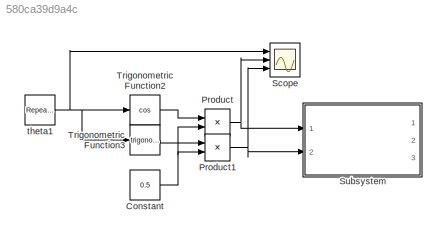
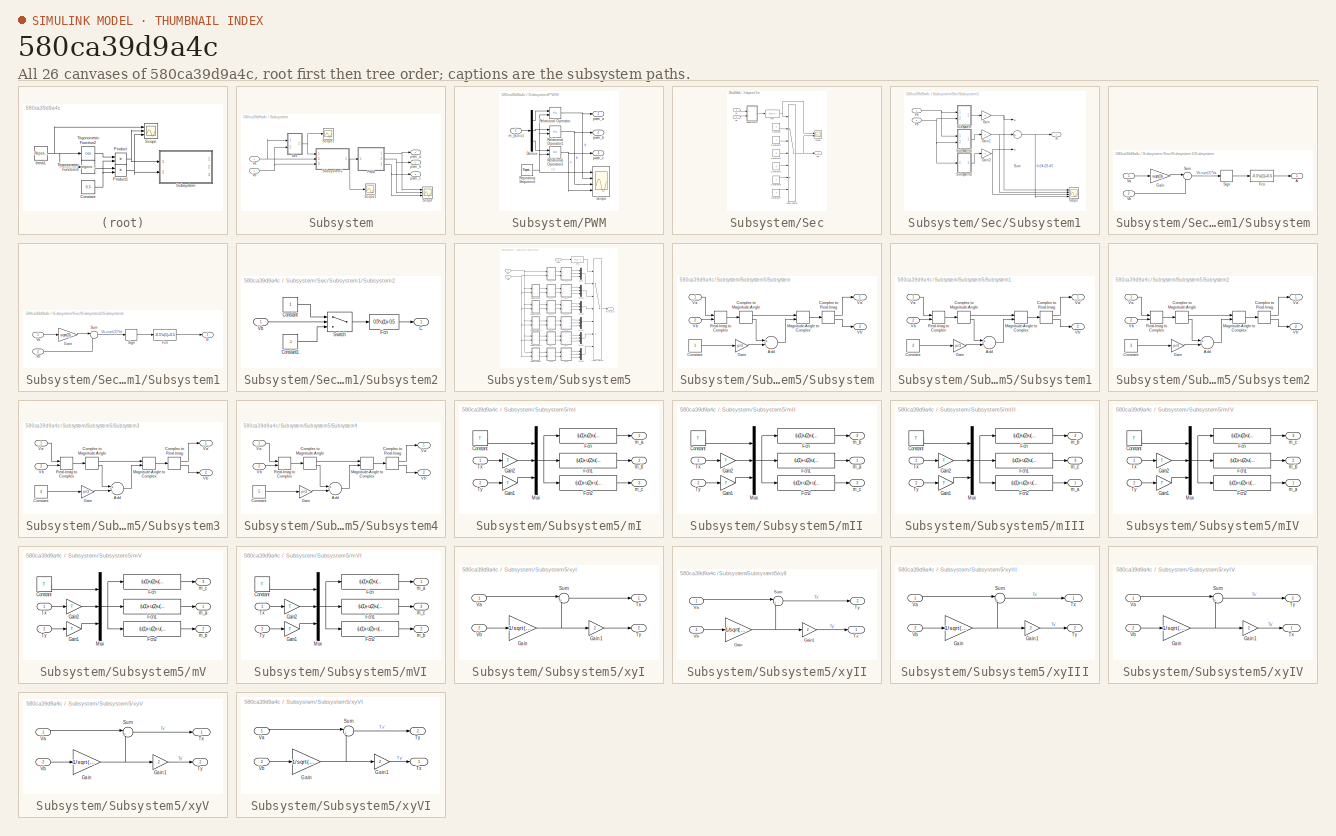
[diagram: thumbnail index - all 26 canvases of the model, root first then tree order]
MODEL slx_580ca39d9a4c
KIND model
CONFIG AbsTol = auto
CONFIG EnableMultiTasking = off
CONFIG FixedStep = auto
CONFIG MaxStep = 1e-5
CONFIG MinStep = auto
CONFIG RelTol = 1e-3
CONFIG SampleTimeConstraint = Unconstrained
CONFIG Solver = VariableStepAuto
CONFIG SolverName = VariableStepAuto
CONFIG StartTime = 0.0
CONFIG StopTime = 10.0
BLOCK [Constant] Constant
  Value = 0.5
BLOCK [Product] Product
  InputSameDT = off
  OutDataTypeStr = Inherit: Inherit via internal rule
  Ports = [2, 1]
  RndMeth = Floor
  SaturateOnIntegerOverflow = off
BLOCK [Product] Product1
  InputSameDT = off
  OutDataTypeStr = Inherit: Inherit via internal rule
  Ports = [2, 1]
  RndMeth = Floor
  SaturateOnIntegerOverflow = off
BLOCK [Scope] Scope
  Floating = off
  NumInputPorts = 3
  Ports = [3]
  ScopeSpecificationString = Simulink.scopes.TimeScopeBlockCfg('CurrentConfiguration', extmgr.ConfigurationSet(extmgr.Configuration('Core','General UI',true),extmgr.Configuration('Core','Source UI',true),extmgr.Configuration('Sources','WiredSimulink',true,'DataLoggingVariableName','ScopeData1'),extmgr.Configuration('Visuals','Time Domain',true,'SerializedDisplays',{struct('MinYLimReal','-0.7854','MaxYLimReal','7.06858','YLabe...<+2789ch>
BLOCK [SubSystem] Subsystem
  Ports = [2, 3]
  RequestExecContextInheritance = off
BLOCK [SubSystem] Subsystem/PWM
  Ports = [1, 3]
  RequestExecContextInheritance = off
BLOCK [Demux] Subsystem/PWM/Demux
  DisplayOption = bar
  Outputs = 3
  Ports = [1, 3]
BLOCK [RelationalOperator] Subsystem/PWM/Relational Operator
  InputSameDT = off
  Operator = <=
  OutDataTypeStr = boolean
  Ports = [2, 1]
  RndMeth = Simplest
BLOCK [RelationalOperator] Subsystem/PWM/Relational Operator1
  InputSameDT = off
  Operator = <=
  OutDataTypeStr = boolean
  Ports = [2, 1]
  RndMeth = Simplest
BLOCK [RelationalOperator] Subsystem/PWM/Relational Operator2
  InputSameDT = off
  Operator = <=
  OutDataTypeStr = boolean
  Ports = [2, 1]
  RndMeth = Simplest
BLOCK [Reference] Subsystem/PWM/Repeating Sequence  REF=simulink/Sources/Repeating
Sequence
  Ports = [0, 1]
  SourceBlock = simulink/Sources/Repeating\nSequence
  SourceProductBaseCode = SL
  SourceProductName = Simulink
  SourceType = Repeating table
BLOCK [Scope] Subsystem/PWM/Scope
  Floating = off
  NumInputPorts = 4
  Ports = [4]
  ScopeSpecificationString = Simulink.scopes.TimeScopeBlockCfg('CurrentConfiguration', extmgr.ConfigurationSet(extmgr.Configuration('Core','General UI',true),extmgr.Configuration('Core','Source UI',true),extmgr.Configuration('Sources','WiredSimulink',true,'DataLoggingVariableName','ScopeData1'),extmgr.Configuration('Visuals','Time Domain',true,'SerializedDisplays',{struct('MinYLimReal','0.5','MaxYLimReal','2','YLabelReal','',...<+2700ch>
BLOCK [Inport] Subsystem/PWM/m_(a,b,c) 
  IconDisplay = Port number
BLOCK [Outport] Subsystem/PWM/pwm_a
  IconDisplay = Port number
BLOCK [Outport] Subsystem/PWM/pwm_b
  IconDisplay = Port number
  Port = 2
BLOCK [Outport] Subsystem/PWM/pwm_c
  IconDisplay = Port number
  Port = 3
BLOCK [Scope] Subsystem/Scope
  Floating = off
  NumInputPorts = 3
  Ports = [3]
  ScopeSpecificationString = Simulink.scopes.TimeScopeBlockCfg('CurrentConfiguration', extmgr.ConfigurationSet(extmgr.Configuration('Core','General UI',true),extmgr.Configuration('Core','Source UI',true),extmgr.Configuration('Sources','WiredSimulink',true,'DataLoggingVariableName','ScopeData1'),extmgr.Configuration('Visuals','Time Domain',true,'SerializedDisplays',{struct('MinYLimReal','-0.125','MaxYLimReal','1.125','YLabelRe...<+2741ch>
BLOCK [Scope] Subsystem/Scope1
  Floating = off
  NumInputPorts = 1
  Ports = [1]
  ScopeSpecificationString = Simulink.scopes.TimeScopeBlockCfg('CurrentConfiguration', extmgr.ConfigurationSet(extmgr.Configuration('Core','General UI',true),extmgr.Configuration('Core','Source UI',true),extmgr.Configuration('Sources','WiredSimulink',true,'DataLoggingVariableName','ScopeData2'),extmgr.Configuration('Visuals','Time Domain',true,'SerializedDisplays',{struct('MinYLimReal','-0.000002','MaxYLimReal','0.000068','YL...<+1486ch>
BLOCK [Scope] Subsystem/Scope2
  Floating = off
  NumInputPorts = 1
  Ports = [1]
  ScopeSpecificationString = Simulink.scopes.TimeScopeBlockCfg('CurrentConfiguration', extmgr.ConfigurationSet(extmgr.Configuration('Core','General UI',true),extmgr.Configuration('Core','Source UI',true),extmgr.Configuration('Sources','WiredSimulink',true,'DataLoggingVariableName','ScopeData3'),extmgr.Configuration('Visuals','Time Domain',true,'SerializedDisplays',{struct('MinYLimReal','-0.01167','MaxYLimReal','6.40678','YLab...<+1439ch>
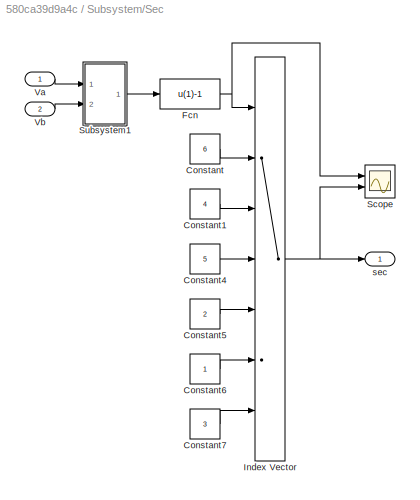
BLOCK [SubSystem] Subsystem/Sec
  Ports = [2, 1]
  RequestExecContextInheritance = off
BLOCK [Constant] Subsystem/Sec/Constant
  Value = 6
BLOCK [Constant] Subsystem/Sec/Constant1
  Value = 4
BLOCK [Constant] Subsystem/Sec/Constant4
  Value = 5
BLOCK [Constant] Subsystem/Sec/Constant5
  Value = 2
BLOCK [Constant] Subsystem/Sec/Constant6
BLOCK [Constant] Subsystem/Sec/Constant7
  Value = 3
BLOCK [Fcn] Subsystem/Sec/Fcn
  Expr = u(1)-1
BLOCK [MultiPortSwitch] Subsystem/Sec/Index Vector
  DataPortOrder = Zero-based contiguous
  InputSameDT = off
  Inputs = 6
  Ports = [7, 1]
  SaturateOnIntegerOverflow = off
  zeroidx = on
BLOCK [Scope] Subsystem/Sec/Scope
  Floating = off
  NumInputPorts = 2
  Ports = [2]
  ScopeSpecificationString = Simulink.scopes.TimeScopeBlockCfg('CurrentConfiguration', extmgr.ConfigurationSet(extmgr.Configuration('Core','General UI',true),extmgr.Configuration('Core','Source UI',true),extmgr.Configuration('Sources','WiredSimulink',true,'DataLoggingVariableName','ScopeData1'),extmgr.Configuration('Visuals','Time Domain',true,'SerializedDisplays',{struct('MinYLimReal','-0.625','MaxYLimReal','5.625','YLabelRe...<+2099ch>
BLOCK [SubSystem] Subsystem/Sec/Subsystem1
  Ports = [2, 1]
  RequestExecContextInheritance = off
BLOCK [Gain] Subsystem/Sec/Subsystem1/Gain
  OutDataTypeStr = Inherit: Inherit via internal rule
  ParamDataTypeStr = Inherit: Inherit via internal rule
  SaturateOnIntegerOverflow = off
BLOCK [Gain] Subsystem/Sec/Subsystem1/Gain1
  Gain = 2
  OutDataTypeStr = Inherit: Inherit via internal rule
  ParamDataTypeStr = Inherit: Inherit via internal rule
  SaturateOnIntegerOverflow = off
BLOCK [Gain] Subsystem/Sec/Subsystem1/Gain2
  Gain = 4
  OutDataTypeStr = Inherit: Inherit via internal rule
  ParamDataTypeStr = Inherit: Inherit via internal rule
  SaturateOnIntegerOverflow = off
BLOCK [Outport] Subsystem/Sec/Subsystem1/N 
  IconDisplay = Port number
BLOCK [Scope] Subsystem/Sec/Subsystem1/Scope
  Floating = off
  NumInputPorts = 4
  Ports = [4]
  ScopeSpecificationString = Simulink.scopes.TimeScopeBlockCfg('CurrentConfiguration', extmgr.ConfigurationSet(extmgr.Configuration('Core','General UI',true),extmgr.Configuration('Core','Source UI',true),extmgr.Configuration('Sources','WiredSimulink',true,'DataLoggingVariableName','ScopeData2'),extmgr.Configuration('Visuals','Time Domain',true,'SerializedDisplays',{struct('MinYLimReal','-0.125','MaxYLimReal','1.125','YLabelRe...<+3484ch>
BLOCK [SubSystem] Subsystem/Sec/Subsystem1/Subsystem
  Ports = [2, 1]
  RequestExecContextInheritance = off
BLOCK [Outport] Subsystem/Sec/Subsystem1/Subsystem/A
  IconDisplay = Port number
BLOCK [Fcn] Subsystem/Sec/Subsystem1/Subsystem/Fcn
  Expr = -0.5*u(1)+0.5
BLOCK [Gain] Subsystem/Sec/Subsystem1/Subsystem/Gain
  Gain = sqrt(3)
  OutDataTypeStr = Inherit: Inherit via internal rule
  ParamDataTypeStr = Inherit: Inherit via internal rule
  SaturateOnIntegerOverflow = off
BLOCK [Signum] Subsystem/Sec/Subsystem1/Subsystem/Sign
BLOCK [Sum] Subsystem/Sec/Subsystem1/Subsystem/Sum
  IconShape = round
  InputSameDT = off
  Inputs = |-+
  OutDataTypeStr = Inherit: Inherit via internal rule
  Ports = [2, 1]
  SaturateOnIntegerOverflow = off
BLOCK [Inport] Subsystem/Sec/Subsystem1/Subsystem/Va
  IconDisplay = Port number
BLOCK [Inport] Subsystem/Sec/Subsystem1/Subsystem/Vb 
  IconDisplay = Port number
  Port = 2
BLOCK [SubSystem] Subsystem/Sec/Subsystem1/Subsystem1
  Ports = [2, 1]
  RequestExecContextInheritance = off
BLOCK [Outport] Subsystem/Sec/Subsystem1/Subsystem1/B
  IconDisplay = Port number
BLOCK [Fcn] Subsystem/Sec/Subsystem1/Subsystem1/Fcn
  Expr = -0.5*u(1)+0.5
BLOCK [Gain] Subsystem/Sec/Subsystem1/Subsystem1/Gain
  Gain = sqrt(3)
  OutDataTypeStr = Inherit: Inherit via internal rule
  ParamDataTypeStr = Inherit: Inherit via internal rule
  SaturateOnIntegerOverflow = off
BLOCK [Signum] Subsystem/Sec/Subsystem1/Subsystem1/Sign
BLOCK [Sum] Subsystem/Sec/Subsystem1/Subsystem1/Sum
  IconShape = round
  InputSameDT = off
  Inputs = |++
  OutDataTypeStr = Inherit: Inherit via internal rule
  Ports = [2, 1]
  SaturateOnIntegerOverflow = off
BLOCK [Inport] Subsystem/Sec/Subsystem1/Subsystem1/Va
  IconDisplay = Port number
BLOCK [Inport] Subsystem/Sec/Subsystem1/Subsystem1/Vb 
  IconDisplay = Port number
  Port = 2
BLOCK [SubSystem] Subsystem/Sec/Subsystem1/Subsystem2
  Ports = [1, 1]
  RequestExecContextInheritance = off
BLOCK [Outport] Subsystem/Sec/Subsystem1/Subsystem2/C
  IconDisplay = Port number
BLOCK [Constant] Subsystem/Sec/Subsystem1/Subsystem2/Constant
BLOCK [Constant] Subsystem/Sec/Subsystem1/Subsystem2/Constant1
  Value = -1
BLOCK [Fcn] Subsystem/Sec/Subsystem1/Subsystem2/Fcn
  Expr = 0.5*u(1)+0.5
BLOCK [Switch] Subsystem/Sec/Subsystem1/Subsystem2/Switch
  InputSameDT = off
  SaturateOnIntegerOverflow = off
BLOCK [Inport] Subsystem/Sec/Subsystem1/Subsystem2/Vb 
  IconDisplay = Port number
BLOCK [Sum] Subsystem/Sec/Subsystem1/Sum
  InputSameDT = off
  Inputs = +++
  OutDataTypeStr = Inherit: Inherit via internal rule
  Ports = [3, 1]
  SaturateOnIntegerOverflow = off
BLOCK [Inport] Subsystem/Sec/Subsystem1/Va
  IconDisplay = Port number
BLOCK [Inport] Subsystem/Sec/Subsystem1/Vb 
  IconDisplay = Port number
  Port = 2
BLOCK [Inport] Subsystem/Sec/Va
  IconDisplay = Port number
BLOCK [Inport] Subsystem/Sec/Vb
  IconDisplay = Port number
  Port = 2
BLOCK [Outport] Subsystem/Sec/sec
  IconDisplay = Port number
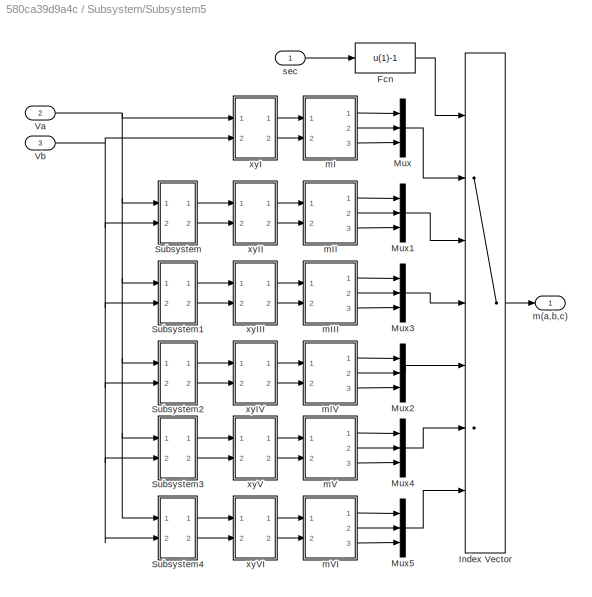
BLOCK [SubSystem] Subsystem/Subsystem5
  Ports = [3, 1]
  RequestExecContextInheritance = off
BLOCK [Fcn] Subsystem/Subsystem5/Fcn
  Expr = u(1)-1
BLOCK [MultiPortSwitch] Subsystem/Subsystem5/Index Vector
  DataPortOrder = Zero-based contiguous
  InputSameDT = off
  Inputs = 6
  Ports = [7, 1]
  SaturateOnIntegerOverflow = off
  zeroidx = on
BLOCK [Mux] Subsystem/Subsystem5/Mux
  DisplayOption = bar
  Inputs = 3
  Ports = [3, 1]
BLOCK [Mux] Subsystem/Subsystem5/Mux1
  DisplayOption = bar
  Inputs = 3
  Ports = [3, 1]
BLOCK [Mux] Subsystem/Subsystem5/Mux2
  DisplayOption = bar
  Inputs = 3
  Ports = [3, 1]
BLOCK [Mux] Subsystem/Subsystem5/Mux3
  DisplayOption = bar
  Inputs = 3
  Ports = [3, 1]
BLOCK [Mux] Subsystem/Subsystem5/Mux4
  DisplayOption = bar
  Inputs = 3
  Ports = [3, 1]
BLOCK [Mux] Subsystem/Subsystem5/Mux5
  DisplayOption = bar
  Inputs = 3
  Ports = [3, 1]
BLOCK [SubSystem] Subsystem/Subsystem5/Subsystem
  Ports = [2, 2]
  RequestExecContextInheritance = off
BLOCK [Sum] Subsystem/Subsystem5/Subsystem/Add
  InputSameDT = off
  Inputs = +-
  OutDataTypeStr = Inherit: Inherit via internal rule
  Ports = [2, 1]
  SaturateOnIntegerOverflow = off
BLOCK [ComplexToMagnitudeAngle] Subsystem/Subsystem5/Subsystem/Complex to Magnitude-Angle
  Ports = [1, 2]
BLOCK [ComplexToRealImag] Subsystem/Subsystem5/Subsystem/Complex to Real-Imag
  Ports = [1, 2]
BLOCK [Constant] Subsystem/Subsystem5/Subsystem/Constant
BLOCK [Gain] Subsystem/Subsystem5/Subsystem/Gain
  Gain = pi/3
  OutDataTypeStr = Inherit: Inherit via internal rule
  ParamDataTypeStr = Inherit: Inherit via internal rule
  SaturateOnIntegerOverflow = off
BLOCK [MagnitudeAngleToComplex] Subsystem/Subsystem5/Subsystem/Magnitude-Angle to Complex
  Ports = [2, 1]
BLOCK [RealImagToComplex] Subsystem/Subsystem5/Subsystem/Real-Imag to Complex
  Ports = [2, 1]
BLOCK [Inport] Subsystem/Subsystem5/Subsystem/Va
  IconDisplay = Port number
BLOCK [Outport] Subsystem/Subsystem5/Subsystem/Va'
  IconDisplay = Port number
BLOCK [Inport] Subsystem/Subsystem5/Subsystem/Vb
  IconDisplay = Port number
  Port = 2
BLOCK [Outport] Subsystem/Subsystem5/Subsystem/Vb'
  IconDisplay = Port number
  Port = 2
BLOCK [SubSystem] Subsystem/Subsystem5/Subsystem1
  Ports = [2, 2]
  RequestExecContextInheritance = off
BLOCK [Sum] Subsystem/Subsystem5/Subsystem1/Add
  InputSameDT = off
  Inputs = +-
  OutDataTypeStr = Inherit: Inherit via internal rule
  Ports = [2, 1]
  SaturateOnIntegerOverflow = off
BLOCK [ComplexToMagnitudeAngle] Subsystem/Subsystem5/Subsystem1/Complex to Magnitude-Angle
  Ports = [1, 2]
BLOCK [ComplexToRealImag] Subsystem/Subsystem5/Subsystem1/Complex to Real-Imag
  Ports = [1, 2]
BLOCK [Constant] Subsystem/Subsystem5/Subsystem1/Constant
  Value = 2
BLOCK [Gain] Subsystem/Subsystem5/Subsystem1/Gain
  Gain = pi/3
  OutDataTypeStr = Inherit: Inherit via internal rule
  ParamDataTypeStr = Inherit: Inherit via internal rule
  SaturateOnIntegerOverflow = off
BLOCK [MagnitudeAngleToComplex] Subsystem/Subsystem5/Subsystem1/Magnitude-Angle to Complex
  Ports = [2, 1]
BLOCK [RealImagToComplex] Subsystem/Subsystem5/Subsystem1/Real-Imag to Complex
  Ports = [2, 1]
BLOCK [Inport] Subsystem/Subsystem5/Subsystem1/Va
  IconDisplay = Port number
BLOCK [Outport] Subsystem/Subsystem5/Subsystem1/Va'
  IconDisplay = Port number
BLOCK [Inport] Subsystem/Subsystem5/Subsystem1/Vb
  IconDisplay = Port number
  Port = 2
BLOCK [Outport] Subsystem/Subsystem5/Subsystem1/Vb'
  IconDisplay = Port number
  Port = 2
BLOCK [SubSystem] Subsystem/Subsystem5/Subsystem2
  Ports = [2, 2]
  RequestExecContextInheritance = off
BLOCK [Sum] Subsystem/Subsystem5/Subsystem2/Add
  InputSameDT = off
  Inputs = +-
  OutDataTypeStr = Inherit: Inherit via internal rule
  Ports = [2, 1]
  SaturateOnIntegerOverflow = off
BLOCK [ComplexToMagnitudeAngle] Subsystem/Subsystem5/Subsystem2/Complex to Magnitude-Angle
  Ports = [1, 2]
BLOCK [ComplexToRealImag] Subsystem/Subsystem5/Subsystem2/Complex to Real-Imag
  Ports = [1, 2]
BLOCK [Constant] Subsystem/Subsystem5/Subsystem2/Constant
  Value = 3
BLOCK [Gain] Subsystem/Subsystem5/Subsystem2/Gain
  Gain = pi/3
  OutDataTypeStr = Inherit: Inherit via internal rule
  ParamDataTypeStr = Inherit: Inherit via internal rule
  SaturateOnIntegerOverflow = off
BLOCK [MagnitudeAngleToComplex] Subsystem/Subsystem5/Subsystem2/Magnitude-Angle to Complex
  Ports = [2, 1]
BLOCK [RealImagToComplex] Subsystem/Subsystem5/Subsystem2/Real-Imag to Complex
  Ports = [2, 1]
BLOCK [Inport] Subsystem/Subsystem5/Subsystem2/Va
  IconDisplay = Port number
BLOCK [Outport] Subsystem/Subsystem5/Subsystem2/Va'
  IconDisplay = Port number
BLOCK [Inport] Subsystem/Subsystem5/Subsystem2/Vb
  IconDisplay = Port number
  Port = 2
BLOCK [Outport] Subsystem/Subsystem5/Subsystem2/Vb'
  IconDisplay = Port number
  Port = 2
BLOCK [SubSystem] Subsystem/Subsystem5/Subsystem3
  Ports = [2, 2]
  RequestExecContextInheritance = off
BLOCK [Sum] Subsystem/Subsystem5/Subsystem3/Add
  InputSameDT = off
  Inputs = +-
  OutDataTypeStr = Inherit: Inherit via internal rule
  Ports = [2, 1]
  SaturateOnIntegerOverflow = off
BLOCK [ComplexToMagnitudeAngle] Subsystem/Subsystem5/Subsystem3/Complex to Magnitude-Angle
  Ports = [1, 2]
BLOCK [ComplexToRealImag] Subsystem/Subsystem5/Subsystem3/Complex to Real-Imag
  Ports = [1, 2]
BLOCK [Constant] Subsystem/Subsystem5/Subsystem3/Constant
  Value = 4
BLOCK [Gain] Subsystem/Subsystem5/Subsystem3/Gain
  Gain = pi/3
  OutDataTypeStr = Inherit: Inherit via internal rule
  ParamDataTypeStr = Inherit: Inherit via internal rule
  SaturateOnIntegerOverflow = off
BLOCK [MagnitudeAngleToComplex] Subsystem/Subsystem5/Subsystem3/Magnitude-Angle to Complex
  Ports = [2, 1]
BLOCK [RealImagToComplex] Subsystem/Subsystem5/Subsystem3/Real-Imag to Complex
  Ports = [2, 1]
BLOCK [Inport] Subsystem/Subsystem5/Subsystem3/Va
  IconDisplay = Port number
BLOCK [Outport] Subsystem/Subsystem5/Subsystem3/Va'
  IconDisplay = Port number
BLOCK [Inport] Subsystem/Subsystem5/Subsystem3/Vb
  IconDisplay = Port number
  Port = 2
BLOCK [Outport] Subsystem/Subsystem5/Subsystem3/Vb'
  IconDisplay = Port number
  Port = 2
BLOCK [SubSystem] Subsystem/Subsystem5/Subsystem4
  Ports = [2, 2]
  RequestExecContextInheritance = off
BLOCK [Sum] Subsystem/Subsystem5/Subsystem4/Add
  InputSameDT = off
  Inputs = +-
  OutDataTypeStr = Inherit: Inherit via internal rule
  Ports = [2, 1]
  SaturateOnIntegerOverflow = off
BLOCK [ComplexToMagnitudeAngle] Subsystem/Subsystem5/Subsystem4/Complex to Magnitude-Angle
  Ports = [1, 2]
BLOCK [ComplexToRealImag] Subsystem/Subsystem5/Subsystem4/Complex to Real-Imag
  Ports = [1, 2]
BLOCK [Constant] Subsystem/Subsystem5/Subsystem4/Constant
  Value = 5
BLOCK [Gain] Subsystem/Subsystem5/Subsystem4/Gain
  Gain = pi/3
  OutDataTypeStr = Inherit: Inherit via internal rule
  ParamDataTypeStr = Inherit: Inherit via internal rule
  SaturateOnIntegerOverflow = off
BLOCK [MagnitudeAngleToComplex] Subsystem/Subsystem5/Subsystem4/Magnitude-Angle to Complex
  Ports = [2, 1]
BLOCK [RealImagToComplex] Subsystem/Subsystem5/Subsystem4/Real-Imag to Complex
  Ports = [2, 1]
BLOCK [Inport] Subsystem/Subsystem5/Subsystem4/Va
  IconDisplay = Port number
BLOCK [Outport] Subsystem/Subsystem5/Subsystem4/Va'
  IconDisplay = Port number
BLOCK [Inport] Subsystem/Subsystem5/Subsystem4/Vb
  IconDisplay = Port number
  Port = 2
BLOCK [Outport] Subsystem/Subsystem5/Subsystem4/Vb'
  IconDisplay = Port number
  Port = 2
BLOCK [Inport] Subsystem/Subsystem5/Va
  IconDisplay = Port number
  Port = 2
BLOCK [Inport] Subsystem/Subsystem5/Vb
  IconDisplay = Port number
  Port = 3
BLOCK [Outport] Subsystem/Subsystem5/m(a,b,c)
  IconDisplay = Port number
BLOCK [SubSystem] Subsystem/Subsystem5/mI
  Ports = [2, 3]
  RequestExecContextInheritance = off
BLOCK [Constant] Subsystem/Subsystem5/mI/Constant
  Value = T
BLOCK [Fcn] Subsystem/Subsystem5/mI/Fcn
  Expr = (u(1)-u(2)-u(3))/4
BLOCK [Fcn] Subsystem/Subsystem5/mI/Fcn1
  Expr = (u(1)+u(2)-u(3))/4
BLOCK [Fcn] Subsystem/Subsystem5/mI/Fcn2
  Expr = (u(1)+u(2)+u(3))/4
BLOCK [Gain] Subsystem/Subsystem5/mI/Gain1
  Gain = T
  OutDataTypeStr = Inherit: Inherit via internal rule
  ParamDataTypeStr = Inherit: Inherit via internal rule
  SaturateOnIntegerOverflow = off
BLOCK [Gain] Subsystem/Subsystem5/mI/Gain2
  Gain = T
  OutDataTypeStr = Inherit: Inherit via internal rule
  ParamDataTypeStr = Inherit: Inherit via internal rule
  SaturateOnIntegerOverflow = off
BLOCK [Mux] Subsystem/Subsystem5/mI/Mux
  DisplayOption = bar
  Inputs = 3
  Ports = [3, 1]
BLOCK [Inport] Subsystem/Subsystem5/mI/Tx 
  IconDisplay = Port number
BLOCK [Inport] Subsystem/Subsystem5/mI/Ty 
  IconDisplay = Port number
  Port = 2
BLOCK [Outport] Subsystem/Subsystem5/mI/m_a
  IconDisplay = Port number
BLOCK [Outport] Subsystem/Subsystem5/mI/m_b
  IconDisplay = Port number
  Port = 2
BLOCK [Outport] Subsystem/Subsystem5/mI/m_c
  IconDisplay = Port number
  Port = 3
BLOCK [SubSystem] Subsystem/Subsystem5/mII
  Ports = [2, 3]
  RequestExecContextInheritance = off
BLOCK [Constant] Subsystem/Subsystem5/mII/Constant
  Value = T
BLOCK [Fcn] Subsystem/Subsystem5/mII/Fcn
  Expr = (u(1)-u(2)-u(3))/4
BLOCK [Fcn] Subsystem/Subsystem5/mII/Fcn1
  Expr = (u(1)+u(2)-u(3))/4
BLOCK [Fcn] Subsystem/Subsystem5/mII/Fcn2
  Expr = (u(1)+u(2)+u(3))/4
BLOCK [Gain] Subsystem/Subsystem5/mII/Gain1
  Gain = T
  OutDataTypeStr = Inherit: Inherit via internal rule
  ParamDataTypeStr = Inherit: Inherit via internal rule
  SaturateOnIntegerOverflow = off
BLOCK [Gain] Subsystem/Subsystem5/mII/Gain2
  Gain = T
  OutDataTypeStr = Inherit: Inherit via internal rule
  ParamDataTypeStr = Inherit: Inherit via internal rule
  SaturateOnIntegerOverflow = off
BLOCK [Mux] Subsystem/Subsystem5/mII/Mux
  DisplayOption = bar
  Inputs = 3
  Ports = [3, 1]
BLOCK [Inport] Subsystem/Subsystem5/mII/Tx 
  IconDisplay = Port number
BLOCK [Inport] Subsystem/Subsystem5/mII/Ty 
  IconDisplay = Port number
  Port = 2
BLOCK [Outport] Subsystem/Subsystem5/mII/m_a
  IconDisplay = Port number
BLOCK [Outport] Subsystem/Subsystem5/mII/m_b
  IconDisplay = Port number
  Port = 2
BLOCK [Outport] Subsystem/Subsystem5/mII/m_c
  IconDisplay = Port number
  Port = 3
BLOCK [SubSystem] Subsystem/Subsystem5/mIII
  Ports = [2, 3]
  RequestExecContextInheritance = off
BLOCK [Constant] Subsystem/Subsystem5/mIII/Constant
  Value = T
BLOCK [Fcn] Subsystem/Subsystem5/mIII/Fcn
  Expr = (u(1)-u(2)-u(3))/4
BLOCK [Fcn] Subsystem/Subsystem5/mIII/Fcn1
  Expr = (u(1)+u(2)-u(3))/4
BLOCK [Fcn] Subsystem/Subsystem5/mIII/Fcn2
  Expr = (u(1)+u(2)+u(3))/4
BLOCK [Gain] Subsystem/Subsystem5/mIII/Gain1
  Gain = T
  OutDataTypeStr = Inherit: Inherit via internal rule
  ParamDataTypeStr = Inherit: Inherit via internal rule
  SaturateOnIntegerOverflow = off
BLOCK [Gain] Subsystem/Subsystem5/mIII/Gain2
  Gain = T
  OutDataTypeStr = Inherit: Inherit via internal rule
  ParamDataTypeStr = Inherit: Inherit via internal rule
  SaturateOnIntegerOverflow = off
BLOCK [Mux] Subsystem/Subsystem5/mIII/Mux
  DisplayOption = bar
  Inputs = 3
  Ports = [3, 1]
BLOCK [Inport] Subsystem/Subsystem5/mIII/Tx 
  IconDisplay = Port number
BLOCK [Inport] Subsystem/Subsystem5/mIII/Ty 
  IconDisplay = Port number
  Port = 2
BLOCK [Outport] Subsystem/Subsystem5/mIII/m_a
  IconDisplay = Port number
BLOCK [Outport] Subsystem/Subsystem5/mIII/m_b
  IconDisplay = Port number
  Port = 2
BLOCK [Outport] Subsystem/Subsystem5/mIII/m_c
  IconDisplay = Port number
  Port = 3
BLOCK [SubSystem] Subsystem/Subsystem5/mIV
  Ports = [2, 3]
  RequestExecContextInheritance = off
BLOCK [Constant] Subsystem/Subsystem5/mIV/Constant
  Value = T
BLOCK [Fcn] Subsystem/Subsystem5/mIV/Fcn
  Expr = (u(1)-u(2)-u(3))/4
BLOCK [Fcn] Subsystem/Subsystem5/mIV/Fcn1
  Expr = (u(1)+u(2)-u(3))/4
BLOCK [Fcn] Subsystem/Subsystem5/mIV/Fcn2
  Expr = (u(1)+u(2)+u(3))/4
BLOCK [Gain] Subsystem/Subsystem5/mIV/Gain1
  Gain = T
  OutDataTypeStr = Inherit: Inherit via internal rule
  ParamDataTypeStr = Inherit: Inherit via internal rule
  SaturateOnIntegerOverflow = off
BLOCK [Gain] Subsystem/Subsystem5/mIV/Gain2
  Gain = T
  OutDataTypeStr = Inherit: Inherit via internal rule
  ParamDataTypeStr = Inherit: Inherit via internal rule
  SaturateOnIntegerOverflow = off
BLOCK [Mux] Subsystem/Subsystem5/mIV/Mux
  DisplayOption = bar
  Inputs = 3
  Ports = [3, 1]
BLOCK [Inport] Subsystem/Subsystem5/mIV/Tx 
  IconDisplay = Port number
BLOCK [Inport] Subsystem/Subsystem5/mIV/Ty 
  IconDisplay = Port number
  Port = 2
BLOCK [Outport] Subsystem/Subsystem5/mIV/m_a
  IconDisplay = Port number
BLOCK [Outport] Subsystem/Subsystem5/mIV/m_b
  IconDisplay = Port number
  Port = 2
BLOCK [Outport] Subsystem/Subsystem5/mIV/m_c
  IconDisplay = Port number
  Port = 3
BLOCK [SubSystem] Subsystem/Subsystem5/mV
  Ports = [2, 3]
  RequestExecContextInheritance = off
BLOCK [Constant] Subsystem/Subsystem5/mV/Constant
  Value = T
BLOCK [Fcn] Subsystem/Subsystem5/mV/Fcn
  Expr = (u(1)-u(2)-u(3))/4
BLOCK [Fcn] Subsystem/Subsystem5/mV/Fcn1
  Expr = (u(1)+u(2)-u(3))/4
BLOCK [Fcn] Subsystem/Subsystem5/mV/Fcn2
  Expr = (u(1)+u(2)+u(3))/4
BLOCK [Gain] Subsystem/Subsystem5/mV/Gain1
  Gain = T
  OutDataTypeStr = Inherit: Inherit via internal rule
  ParamDataTypeStr = Inherit: Inherit via internal rule
  SaturateOnIntegerOverflow = off
BLOCK [Gain] Subsystem/Subsystem5/mV/Gain2
  Gain = T
  OutDataTypeStr = Inherit: Inherit via internal rule
  ParamDataTypeStr = Inherit: Inherit via internal rule
  SaturateOnIntegerOverflow = off
BLOCK [Mux] Subsystem/Subsystem5/mV/Mux
  DisplayOption = bar
  Inputs = 3
  Ports = [3, 1]
BLOCK [Inport] Subsystem/Subsystem5/mV/Tx 
  IconDisplay = Port number
BLOCK [Inport] Subsystem/Subsystem5/mV/Ty 
  IconDisplay = Port number
  Port = 2
BLOCK [Outport] Subsystem/Subsystem5/mV/m_a
  IconDisplay = Port number
BLOCK [Outport] Subsystem/Subsystem5/mV/m_b
  IconDisplay = Port number
  Port = 2
BLOCK [Outport] Subsystem/Subsystem5/mV/m_c
  IconDisplay = Port number
  Port = 3
BLOCK [SubSystem] Subsystem/Subsystem5/mVI
  Ports = [2, 3]
  RequestExecContextInheritance = off
BLOCK [Constant] Subsystem/Subsystem5/mVI/Constant
  Value = T
BLOCK [Fcn] Subsystem/Subsystem5/mVI/Fcn
  Expr = (u(1)-u(2)-u(3))/4
BLOCK [Fcn] Subsystem/Subsystem5/mVI/Fcn1
  Expr = (u(1)+u(2)-u(3))/4
BLOCK [Fcn] Subsystem/Subsystem5/mVI/Fcn2
  Expr = (u(1)+u(2)+u(3))/4
BLOCK [Gain] Subsystem/Subsystem5/mVI/Gain1
  Gain = T
  OutDataTypeStr = Inherit: Inherit via internal rule
  ParamDataTypeStr = Inherit: Inherit via internal rule
  SaturateOnIntegerOverflow = off
BLOCK [Gain] Subsystem/Subsystem5/mVI/Gain2
  Gain = T
  OutDataTypeStr = Inherit: Inherit via internal rule
  ParamDataTypeStr = Inherit: Inherit via internal rule
  SaturateOnIntegerOverflow = off
BLOCK [Mux] Subsystem/Subsystem5/mVI/Mux
  DisplayOption = bar
  Inputs = 3
  Ports = [3, 1]
BLOCK [Inport] Subsystem/Subsystem5/mVI/Tx 
  IconDisplay = Port number
BLOCK [Inport] Subsystem/Subsystem5/mVI/Ty 
  IconDisplay = Port number
  Port = 2
BLOCK [Outport] Subsystem/Subsystem5/mVI/m_a
  IconDisplay = Port number
BLOCK [Outport] Subsystem/Subsystem5/mVI/m_b
  IconDisplay = Port number
  Port = 2
BLOCK [Outport] Subsystem/Subsystem5/mVI/m_c
  IconDisplay = Port number
  Port = 3
BLOCK [Inport] Subsystem/Subsystem5/sec
  IconDisplay = Port number
BLOCK [SubSystem] Subsystem/Subsystem5/xyI
  Ports = [2, 2]
  RequestExecContextInheritance = off
BLOCK [Gain] Subsystem/Subsystem5/xyI/Gain
  Gain = 1/sqrt(3)
  OutDataTypeStr = Inherit: Inherit via internal rule
  ParamDataTypeStr = Inherit: Inherit via internal rule
  SaturateOnIntegerOverflow = off
BLOCK [Gain] Subsystem/Subsystem5/xyI/Gain1
  Gain = 2
  OutDataTypeStr = Inherit: Inherit via internal rule
  ParamDataTypeStr = Inherit: Inherit via internal rule
  SaturateOnIntegerOverflow = off
BLOCK [Sum] Subsystem/Subsystem5/xyI/Sum
  IconShape = round
  InputSameDT = off
  Inputs = |+-
  OutDataTypeStr = Inherit: Inherit via internal rule
  Ports = [2, 1]
  SaturateOnIntegerOverflow = off
BLOCK [Outport] Subsystem/Subsystem5/xyI/Tx
  IconDisplay = Port number
BLOCK [Outport] Subsystem/Subsystem5/xyI/Ty
  IconDisplay = Port number
  Port = 2
BLOCK [Inport] Subsystem/Subsystem5/xyI/Va
  IconDisplay = Port number
BLOCK [Inport] Subsystem/Subsystem5/xyI/Vb 
  IconDisplay = Port number
  Port = 2
BLOCK [SubSystem] Subsystem/Subsystem5/xyII
  Ports = [2, 2]
  RequestExecContextInheritance = off
BLOCK [Gain] Subsystem/Subsystem5/xyII/Gain
  Gain = 1/sqrt(3)
  OutDataTypeStr = Inherit: Inherit via internal rule
  ParamDataTypeStr = Inherit: Inherit via internal rule
  SaturateOnIntegerOverflow = off
BLOCK [Gain] Subsystem/Subsystem5/xyII/Gain1
  Gain = 2
  OutDataTypeStr = Inherit: Inherit via internal rule
  ParamDataTypeStr = Inherit: Inherit via internal rule
  SaturateOnIntegerOverflow = off
BLOCK [Sum] Subsystem/Subsystem5/xyII/Sum
  IconShape = round
  InputSameDT = off
  Inputs = |+-
  OutDataTypeStr = Inherit: Inherit via internal rule
  Ports = [2, 1]
  SaturateOnIntegerOverflow = off
BLOCK [Outport] Subsystem/Subsystem5/xyII/Tx
  IconDisplay = Port number
BLOCK [Outport] Subsystem/Subsystem5/xyII/Ty
  IconDisplay = Port number
  Port = 2
BLOCK [Inport] Subsystem/Subsystem5/xyII/Va
  IconDisplay = Port number
BLOCK [Inport] Subsystem/Subsystem5/xyII/Vb 
  IconDisplay = Port number
  Port = 2
BLOCK [SubSystem] Subsystem/Subsystem5/xyIII
  Ports = [2, 2]
  RequestExecContextInheritance = off
BLOCK [Gain] Subsystem/Subsystem5/xyIII/Gain
  Gain = 1/sqrt(3)
  OutDataTypeStr = Inherit: Inherit via internal rule
  ParamDataTypeStr = Inherit: Inherit via internal rule
  SaturateOnIntegerOverflow = off
BLOCK [Gain] Subsystem/Subsystem5/xyIII/Gain1
  Gain = 2
  OutDataTypeStr = Inherit: Inherit via internal rule
  ParamDataTypeStr = Inherit: Inherit via internal rule
  SaturateOnIntegerOverflow = off
BLOCK [Sum] Subsystem/Subsystem5/xyIII/Sum
  IconShape = round
  InputSameDT = off
  Inputs = |+-
  OutDataTypeStr = Inherit: Inherit via internal rule
  Ports = [2, 1]
  SaturateOnIntegerOverflow = off
BLOCK [Outport] Subsystem/Subsystem5/xyIII/Tx
  IconDisplay = Port number
BLOCK [Outport] Subsystem/Subsystem5/xyIII/Ty
  IconDisplay = Port number
  Port = 2
BLOCK [Inport] Subsystem/Subsystem5/xyIII/Va
  IconDisplay = Port number
BLOCK [Inport] Subsystem/Subsystem5/xyIII/Vb 
  IconDisplay = Port number
  Port = 2
BLOCK [SubSystem] Subsystem/Subsystem5/xyIV
  Ports = [2, 2]
  RequestExecContextInheritance = off
BLOCK [Gain] Subsystem/Subsystem5/xyIV/Gain
  Gain = 1/sqrt(3)
  OutDataTypeStr = Inherit: Inherit via internal rule
  ParamDataTypeStr = Inherit: Inherit via internal rule
  SaturateOnIntegerOverflow = off
BLOCK [Gain] Subsystem/Subsystem5/xyIV/Gain1
  Gain = 2
  OutDataTypeStr = Inherit: Inherit via internal rule
  ParamDataTypeStr = Inherit: Inherit via internal rule
  SaturateOnIntegerOverflow = off
BLOCK [Sum] Subsystem/Subsystem5/xyIV/Sum
  IconShape = round
  InputSameDT = off
  Inputs = |+-
  OutDataTypeStr = Inherit: Inherit via internal rule
  Ports = [2, 1]
  SaturateOnIntegerOverflow = off
BLOCK [Outport] Subsystem/Subsystem5/xyIV/Tx
  IconDisplay = Port number
BLOCK [Outport] Subsystem/Subsystem5/xyIV/Ty
  IconDisplay = Port number
  Port = 2
BLOCK [Inport] Subsystem/Subsystem5/xyIV/Va
  IconDisplay = Port number
BLOCK [Inport] Subsystem/Subsystem5/xyIV/Vb 
  IconDisplay = Port number
  Port = 2
BLOCK [SubSystem] Subsystem/Subsystem5/xyV
  Ports = [2, 2]
  RequestExecContextInheritance = off
BLOCK [Gain] Subsystem/Subsystem5/xyV/Gain
  Gain = 1/sqrt(3)
  OutDataTypeStr = Inherit: Inherit via internal rule
  ParamDataTypeStr = Inherit: Inherit via internal rule
  SaturateOnIntegerOverflow = off
BLOCK [Gain] Subsystem/Subsystem5/xyV/Gain1
  Gain = 2
  OutDataTypeStr = Inherit: Inherit via internal rule
  ParamDataTypeStr = Inherit: Inherit via internal rule
  SaturateOnIntegerOverflow = off
BLOCK [Sum] Subsystem/Subsystem5/xyV/Sum
  IconShape = round
  InputSameDT = off
  Inputs = |+-
  OutDataTypeStr = Inherit: Inherit via internal rule
  Ports = [2, 1]
  SaturateOnIntegerOverflow = off
BLOCK [Outport] Subsystem/Subsystem5/xyV/Tx
  IconDisplay = Port number
BLOCK [Outport] Subsystem/Subsystem5/xyV/Ty
  IconDisplay = Port number
  Port = 2
BLOCK [Inport] Subsystem/Subsystem5/xyV/Va
  IconDisplay = Port number
BLOCK [Inport] Subsystem/Subsystem5/xyV/Vb 
  IconDisplay = Port number
  Port = 2
BLOCK [SubSystem] Subsystem/Subsystem5/xyVI
  Ports = [2, 2]
  RequestExecContextInheritance = off
BLOCK [Gain] Subsystem/Subsystem5/xyVI/Gain
  Gain = 1/sqrt(3)
  OutDataTypeStr = Inherit: Inherit via internal rule
  ParamDataTypeStr = Inherit: Inherit via internal rule
  SaturateOnIntegerOverflow = off
BLOCK [Gain] Subsystem/Subsystem5/xyVI/Gain1
  Gain = 2
  OutDataTypeStr = Inherit: Inherit via internal rule
  ParamDataTypeStr = Inherit: Inherit via internal rule
  SaturateOnIntegerOverflow = off
BLOCK [Sum] Subsystem/Subsystem5/xyVI/Sum
  IconShape = round
  InputSameDT = off
  Inputs = |+-
  OutDataTypeStr = Inherit: Inherit via internal rule
  Ports = [2, 1]
  SaturateOnIntegerOverflow = off
BLOCK [Outport] Subsystem/Subsystem5/xyVI/Tx
  IconDisplay = Port number
BLOCK [Outport] Subsystem/Subsystem5/xyVI/Ty
  IconDisplay = Port number
  Port = 2
BLOCK [Inport] Subsystem/Subsystem5/xyVI/Va
  IconDisplay = Port number
BLOCK [Inport] Subsystem/Subsystem5/xyVI/Vb 
  IconDisplay = Port number
  Port = 2
BLOCK [Inport] Subsystem/Va
  IconDisplay = Port number
BLOCK [Inport] Subsystem/Vb
  IconDisplay = Port number
  Port = 2
BLOCK [Outport] Subsystem/pwm_a
  IconDisplay = Port number
BLOCK [Outport] Subsystem/pwm_b
  IconDisplay = Port number
  Port = 2
BLOCK [Outport] Subsystem/pwm_c
  IconDisplay = Port number
  Port = 3
BLOCK [Trigonometry] Trigonometric Function2
  Operator = cos
  Ports = [1, 1]
BLOCK [Trigonometry] Trigonometric Function3
  Ports = [1, 1]
BLOCK [Reference] theta1  REF=simulink/Sources/Repeating
Sequence
  Ports = [0, 1]
  SourceBlock = simulink/Sources/Repeating\nSequence
  SourceProductBaseCode = SL
  SourceProductName = Simulink
  SourceType = Repeating table
NET Constant:1 -> Product1:2, Product:2
NET Product1:1 -> Scope:3, Subsystem:2
NET Product:1 -> Scope:2, Subsystem:1
LINE Subsystem/PWM/Demux:1 -> Subsystem/PWM/Relational Operator:1
LINE Subsystem/PWM/Demux:2 -> Subsystem/PWM/Relational Operator1:1
LINE Subsystem/PWM/Demux:3 -> Subsystem/PWM/Relational Operator2:1
NET Subsystem/PWM/Relational Operator1:1 -> Subsystem/PWM/Scope:3, Subsystem/PWM/pwm_b:1
NET Subsystem/PWM/Relational Operator2:1 -> Subsystem/PWM/Scope:4, Subsystem/PWM/pwm_c:1
NET Subsystem/PWM/Relational Operator:1 -> Subsystem/PWM/Scope:2, Subsystem/PWM/pwm_a:1
NET Subsystem/PWM/Repeating Sequence:1 -> Subsystem/PWM/Relational Operator1:2, Subsystem/PWM/Relational Operator2:2, Subsystem/PWM/Relational Operator:2, Subsystem/PWM/Scope:1
LINE Subsystem/PWM/m_(a,b,c) :1 -> Subsystem/PWM/Demux:1
NET Subsystem/PWM:1 -> Subsystem/Scope:1, Subsystem/pwm_a:1
NET Subsystem/PWM:2 -> Subsystem/Scope:2, Subsystem/pwm_b:1
NET Subsystem/PWM:3 -> Subsystem/Scope:3, Subsystem/pwm_c:1
LINE Subsystem/Sec/Constant1:1 -> Subsystem/Sec/Index Vector:3
LINE Subsystem/Sec/Constant4:1 -> Subsystem/Sec/Index Vector:4
LINE Subsystem/Sec/Constant5:1 -> Subsystem/Sec/Index Vector:5
LINE Subsystem/Sec/Constant6:1 -> Subsystem/Sec/Index Vector:6
LINE Subsystem/Sec/Constant7:1 -> Subsystem/Sec/Index Vector:7
LINE Subsystem/Sec/Constant:1 -> Subsystem/Sec/Index Vector:2
NET Subsystem/Sec/Fcn:1 -> Subsystem/Sec/Index Vector:1, Subsystem/Sec/Scope:1
NET Subsystem/Sec/Index Vector:1 -> Subsystem/Sec/Scope:2, Subsystem/Sec/sec:1
NET Subsystem/Sec/Subsystem1/Gain1:1 -> Subsystem/Sec/Subsystem1/Scope:2, Subsystem/Sec/Subsystem1/Sum:2
NET Subsystem/Sec/Subsystem1/Gain2:1 -> Subsystem/Sec/Subsystem1/Scope:3, Subsystem/Sec/Subsystem1/Sum:3
NET Subsystem/Sec/Subsystem1/Gain:1 -> Subsystem/Sec/Subsystem1/Scope:1, Subsystem/Sec/Subsystem1/Sum:1
LINE Subsystem/Sec/Subsystem1/Subsystem/Fcn:1 -> Subsystem/Sec/Subsystem1/Subsystem/A:1
LINE Subsystem/Sec/Subsystem1/Subsystem/Gain:1 -> Subsystem/Sec/Subsystem1/Subsystem/Sum:1
LINE Subsystem/Sec/Subsystem1/Subsystem/Sign:1 -> Subsystem/Sec/Subsystem1/Subsystem/Fcn:1
LINE Subsystem/Sec/Subsystem1/Subsystem/Sum:1 -> Subsystem/Sec/Subsystem1/Subsystem/Sign:1
LINE Subsystem/Sec/Subsystem1/Subsystem/Va:1 -> Subsystem/Sec/Subsystem1/Subsystem/Gain:1
LINE Subsystem/Sec/Subsystem1/Subsystem/Vb :1 -> Subsystem/Sec/Subsystem1/Subsystem/Sum:2
LINE Subsystem/Sec/Subsystem1/Subsystem1/Fcn:1 -> Subsystem/Sec/Subsystem1/Subsystem1/B:1
LINE Subsystem/Sec/Subsystem1/Subsystem1/Gain:1 -> Subsystem/Sec/Subsystem1/Subsystem1/Sum:1
LINE Subsystem/Sec/Subsystem1/Subsystem1/Sign:1 -> Subsystem/Sec/Subsystem1/Subsystem1/Fcn:1
LINE Subsystem/Sec/Subsystem1/Subsystem1/Sum:1 -> Subsystem/Sec/Subsystem1/Subsystem1/Sign:1
LINE Subsystem/Sec/Subsystem1/Subsystem1/Va:1 -> Subsystem/Sec/Subsystem1/Subsystem1/Gain:1
LINE Subsystem/Sec/Subsystem1/Subsystem1/Vb :1 -> Subsystem/Sec/Subsystem1/Subsystem1/Sum:2
LINE Subsystem/Sec/Subsystem1/Subsystem1:1 -> Subsystem/Sec/Subsystem1/Gain1:1
LINE Subsystem/Sec/Subsystem1/Subsystem2/Constant1:1 -> Subsystem/Sec/Subsystem1/Subsystem2/Switch:3
LINE Subsystem/Sec/Subsystem1/Subsystem2/Constant:1 -> Subsystem/Sec/Subsystem1/Subsystem2/Switch:1
LINE Subsystem/Sec/Subsystem1/Subsystem2/Fcn:1 -> Subsystem/Sec/Subsystem1/Subsystem2/C:1
LINE Subsystem/Sec/Subsystem1/Subsystem2/Switch:1 -> Subsystem/Sec/Subsystem1/Subsystem2/Fcn:1
LINE Subsystem/Sec/Subsystem1/Subsystem2/Vb :1 -> Subsystem/Sec/Subsystem1/Subsystem2/Switch:2
LINE Subsystem/Sec/Subsystem1/Subsystem2:1 -> Subsystem/Sec/Subsystem1/Gain2:1
LINE Subsystem/Sec/Subsystem1/Subsystem:1 -> Subsystem/Sec/Subsystem1/Gain:1
NET Subsystem/Sec/Subsystem1/Sum:1 -> Subsystem/Sec/Subsystem1/N :1, Subsystem/Sec/Subsystem1/Scope:4
NET Subsystem/Sec/Subsystem1/Va:1 -> Subsystem/Sec/Subsystem1/Subsystem1:1, Subsystem/Sec/Subsystem1/Subsystem:1
NET Subsystem/Sec/Subsystem1/Vb :1 -> Subsystem/Sec/Subsystem1/Subsystem1:2, Subsystem/Sec/Subsystem1/Subsystem2:1, Subsystem/Sec/Subsystem1/Subsystem:2
LINE Subsystem/Sec/Subsystem1:1 -> Subsystem/Sec/Fcn:1
LINE Subsystem/Sec/Va:1 -> Subsystem/Sec/Subsystem1:1
LINE Subsystem/Sec/Vb:1 -> Subsystem/Sec/Subsystem1:2
NET Subsystem/Sec:1 -> Subsystem/Scope2:1, Subsystem/Subsystem5:1
LINE Subsystem/Subsystem5/Fcn:1 -> Subsystem/Subsystem5/Index Vector:1
LINE Subsystem/Subsystem5/Index Vector:1 -> Subsystem/Subsystem5/m(a,b,c):1
LINE Subsystem/Subsystem5/Mux1:1 -> Subsystem/Subsystem5/Index Vector:3
LINE Subsystem/Subsystem5/Mux2:1 -> Subsystem/Subsystem5/Index Vector:5
LINE Subsystem/Subsystem5/Mux3:1 -> Subsystem/Subsystem5/Index Vector:4
LINE Subsystem/Subsystem5/Mux4:1 -> Subsystem/Subsystem5/Index Vector:6
LINE Subsystem/Subsystem5/Mux5:1 -> Subsystem/Subsystem5/Index Vector:7
LINE Subsystem/Subsystem5/Mux:1 -> Subsystem/Subsystem5/Index Vector:2
LINE Subsystem/Subsystem5/Subsystem/Add:1 -> Subsystem/Subsystem5/Subsystem/Magnitude-Angle to Complex:2
LINE Subsystem/Subsystem5/Subsystem/Complex to Magnitude-Angle:1 -> Subsystem/Subsystem5/Subsystem/Magnitude-Angle to Complex:1
LINE Subsystem/Subsystem5/Subsystem/Complex to Magnitude-Angle:2 -> Subsystem/Subsystem5/Subsystem/Add:1
LINE Subsystem/Subsystem5/Subsystem/Complex to Real-Imag:1 -> Subsystem/Subsystem5/Subsystem/Va':1
LINE Subsystem/Subsystem5/Subsystem/Complex to Real-Imag:2 -> Subsystem/Subsystem5/Subsystem/Vb':1
LINE Subsystem/Subsystem5/Subsystem/Constant:1 -> Subsystem/Subsystem5/Subsystem/Gain:1
LINE Subsystem/Subsystem5/Subsystem/Gain:1 -> Subsystem/Subsystem5/Subsystem/Add:2
LINE Subsystem/Subsystem5/Subsystem/Magnitude-Angle to Complex:1 -> Subsystem/Subsystem5/Subsystem/Complex to Real-Imag:1
LINE Subsystem/Subsystem5/Subsystem/Real-Imag to Complex:1 -> Subsystem/Subsystem5/Subsystem/Complex to Magnitude-Angle:1
LINE Subsystem/Subsystem5/Subsystem/Va:1 -> Subsystem/Subsystem5/Subsystem/Real-Imag to Complex:1
LINE Subsystem/Subsystem5/Subsystem/Vb:1 -> Subsystem/Subsystem5/Subsystem/Real-Imag to Complex:2
LINE Subsystem/Subsystem5/Subsystem1/Add:1 -> Subsystem/Subsystem5/Subsystem1/Magnitude-Angle to Complex:2
LINE Subsystem/Subsystem5/Subsystem1/Complex to Magnitude-Angle:1 -> Subsystem/Subsystem5/Subsystem1/Magnitude-Angle to Complex:1
LINE Subsystem/Subsystem5/Subsystem1/Complex to Magnitude-Angle:2 -> Subsystem/Subsystem5/Subsystem1/Add:1
LINE Subsystem/Subsystem5/Subsystem1/Complex to Real-Imag:1 -> Subsystem/Subsystem5/Subsystem1/Va':1
LINE Subsystem/Subsystem5/Subsystem1/Complex to Real-Imag:2 -> Subsystem/Subsystem5/Subsystem1/Vb':1
LINE Subsystem/Subsystem5/Subsystem1/Constant:1 -> Subsystem/Subsystem5/Subsystem1/Gain:1
LINE Subsystem/Subsystem5/Subsystem1/Gain:1 -> Subsystem/Subsystem5/Subsystem1/Add:2
LINE Subsystem/Subsystem5/Subsystem1/Magnitude-Angle to Complex:1 -> Subsystem/Subsystem5/Subsystem1/Complex to Real-Imag:1
LINE Subsystem/Subsystem5/Subsystem1/Real-Imag to Complex:1 -> Subsystem/Subsystem5/Subsystem1/Complex to Magnitude-Angle:1
LINE Subsystem/Subsystem5/Subsystem1/Va:1 -> Subsystem/Subsystem5/Subsystem1/Real-Imag to Complex:1
LINE Subsystem/Subsystem5/Subsystem1/Vb:1 -> Subsystem/Subsystem5/Subsystem1/Real-Imag to Complex:2
LINE Subsystem/Subsystem5/Subsystem1:1 -> Subsystem/Subsystem5/xyIII:1
LINE Subsystem/Subsystem5/Subsystem1:2 -> Subsystem/Subsystem5/xyIII:2
LINE Subsystem/Subsystem5/Subsystem2/Add:1 -> Subsystem/Subsystem5/Subsystem2/Magnitude-Angle to Complex:2
LINE Subsystem/Subsystem5/Subsystem2/Complex to Magnitude-Angle:1 -> Subsystem/Subsystem5/Subsystem2/Magnitude-Angle to Complex:1
LINE Subsystem/Subsystem5/Subsystem2/Complex to Magnitude-Angle:2 -> Subsystem/Subsystem5/Subsystem2/Add:1
LINE Subsystem/Subsystem5/Subsystem2/Complex to Real-Imag:1 -> Subsystem/Subsystem5/Subsystem2/Va':1
LINE Subsystem/Subsystem5/Subsystem2/Complex to Real-Imag:2 -> Subsystem/Subsystem5/Subsystem2/Vb':1
LINE Subsystem/Subsystem5/Subsystem2/Constant:1 -> Subsystem/Subsystem5/Subsystem2/Gain:1
LINE Subsystem/Subsystem5/Subsystem2/Gain:1 -> Subsystem/Subsystem5/Subsystem2/Add:2
LINE Subsystem/Subsystem5/Subsystem2/Magnitude-Angle to Complex:1 -> Subsystem/Subsystem5/Subsystem2/Complex to Real-Imag:1
LINE Subsystem/Subsystem5/Subsystem2/Real-Imag to Complex:1 -> Subsystem/Subsystem5/Subsystem2/Complex to Magnitude-Angle:1
LINE Subsystem/Subsystem5/Subsystem2/Va:1 -> Subsystem/Subsystem5/Subsystem2/Real-Imag to Complex:1
LINE Subsystem/Subsystem5/Subsystem2/Vb:1 -> Subsystem/Subsystem5/Subsystem2/Real-Imag to Complex:2
LINE Subsystem/Subsystem5/Subsystem2:1 -> Subsystem/Subsystem5/xyIV:1
LINE Subsystem/Subsystem5/Subsystem2:2 -> Subsystem/Subsystem5/xyIV:2
LINE Subsystem/Subsystem5/Subsystem3/Add:1 -> Subsystem/Subsystem5/Subsystem3/Magnitude-Angle to Complex:2
LINE Subsystem/Subsystem5/Subsystem3/Complex to Magnitude-Angle:1 -> Subsystem/Subsystem5/Subsystem3/Magnitude-Angle to Complex:1
LINE Subsystem/Subsystem5/Subsystem3/Complex to Magnitude-Angle:2 -> Subsystem/Subsystem5/Subsystem3/Add:1
LINE Subsystem/Subsystem5/Subsystem3/Complex to Real-Imag:1 -> Subsystem/Subsystem5/Subsystem3/Va':1
LINE Subsystem/Subsystem5/Subsystem3/Complex to Real-Imag:2 -> Subsystem/Subsystem5/Subsystem3/Vb':1
LINE Subsystem/Subsystem5/Subsystem3/Constant:1 -> Subsystem/Subsystem5/Subsystem3/Gain:1
LINE Subsystem/Subsystem5/Subsystem3/Gain:1 -> Subsystem/Subsystem5/Subsystem3/Add:2
LINE Subsystem/Subsystem5/Subsystem3/Magnitude-Angle to Complex:1 -> Subsystem/Subsystem5/Subsystem3/Complex to Real-Imag:1
LINE Subsystem/Subsystem5/Subsystem3/Real-Imag to Complex:1 -> Subsystem/Subsystem5/Subsystem3/Complex to Magnitude-Angle:1
LINE Subsystem/Subsystem5/Subsystem3/Va:1 -> Subsystem/Subsystem5/Subsystem3/Real-Imag to Complex:1
LINE Subsystem/Subsystem5/Subsystem3/Vb:1 -> Subsystem/Subsystem5/Subsystem3/Real-Imag to Complex:2
LINE Subsystem/Subsystem5/Subsystem3:1 -> Subsystem/Subsystem5/xyV:1
LINE Subsystem/Subsystem5/Subsystem3:2 -> Subsystem/Subsystem5/xyV:2
LINE Subsystem/Subsystem5/Subsystem4/Add:1 -> Subsystem/Subsystem5/Subsystem4/Magnitude-Angle to Complex:2
LINE Subsystem/Subsystem5/Subsystem4/Complex to Magnitude-Angle:1 -> Subsystem/Subsystem5/Subsystem4/Magnitude-Angle to Complex:1
LINE Subsystem/Subsystem5/Subsystem4/Complex to Magnitude-Angle:2 -> Subsystem/Subsystem5/Subsystem4/Add:1
LINE Subsystem/Subsystem5/Subsystem4/Complex to Real-Imag:1 -> Subsystem/Subsystem5/Subsystem4/Va':1
LINE Subsystem/Subsystem5/Subsystem4/Complex to Real-Imag:2 -> Subsystem/Subsystem5/Subsystem4/Vb':1
LINE Subsystem/Subsystem5/Subsystem4/Constant:1 -> Subsystem/Subsystem5/Subsystem4/Gain:1
LINE Subsystem/Subsystem5/Subsystem4/Gain:1 -> Subsystem/Subsystem5/Subsystem4/Add:2
LINE Subsystem/Subsystem5/Subsystem4/Magnitude-Angle to Complex:1 -> Subsystem/Subsystem5/Subsystem4/Complex to Real-Imag:1
LINE Subsystem/Subsystem5/Subsystem4/Real-Imag to Complex:1 -> Subsystem/Subsystem5/Subsystem4/Complex to Magnitude-Angle:1
LINE Subsystem/Subsystem5/Subsystem4/Va:1 -> Subsystem/Subsystem5/Subsystem4/Real-Imag to Complex:1
LINE Subsystem/Subsystem5/Subsystem4/Vb:1 -> Subsystem/Subsystem5/Subsystem4/Real-Imag to Complex:2
LINE Subsystem/Subsystem5/Subsystem4:1 -> Subsystem/Subsystem5/xyVI:1
LINE Subsystem/Subsystem5/Subsystem4:2 -> Subsystem/Subsystem5/xyVI:2
LINE Subsystem/Subsystem5/Subsystem:1 -> Subsystem/Subsystem5/xyII:1
LINE Subsystem/Subsystem5/Subsystem:2 -> Subsystem/Subsystem5/xyII:2
NET Subsystem/Subsystem5/Va:1 -> Subsystem/Subsystem5/Subsystem1:1, Subsystem/Subsystem5/Subsystem2:1, Subsystem/Subsystem5/Subsystem3:1, Subsystem/Subsystem5/Subsystem4:1, Subsystem/Subsystem5/Subsystem:1, Subsystem/Subsystem5/xyI:1
NET Subsystem/Subsystem5/Vb:1 -> Subsystem/Subsystem5/Subsystem1:2, Subsystem/Subsystem5/Subsystem2:2, Subsystem/Subsystem5/Subsystem3:2, Subsystem/Subsystem5/Subsystem4:2, Subsystem/Subsystem5/Subsystem:2, Subsystem/Subsystem5/xyI:2
LINE Subsystem/Subsystem5/mI/Constant:1 -> Subsystem/Subsystem5/mI/Mux:1
LINE Subsystem/Subsystem5/mI/Fcn1:1 -> Subsystem/Subsystem5/mI/m_b:1
LINE Subsystem/Subsystem5/mI/Fcn2:1 -> Subsystem/Subsystem5/mI/m_c:1
LINE Subsystem/Subsystem5/mI/Fcn:1 -> Subsystem/Subsystem5/mI/m_a:1
LINE Subsystem/Subsystem5/mI/Gain1:1 -> Subsystem/Subsystem5/mI/Mux:3
LINE Subsystem/Subsystem5/mI/Gain2:1 -> Subsystem/Subsystem5/mI/Mux:2
NET Subsystem/Subsystem5/mI/Mux:1 -> Subsystem/Subsystem5/mI/Fcn1:1, Subsystem/Subsystem5/mI/Fcn2:1, Subsystem/Subsystem5/mI/Fcn:1
LINE Subsystem/Subsystem5/mI/Tx :1 -> Subsystem/Subsystem5/mI/Gain2:1
LINE Subsystem/Subsystem5/mI/Ty :1 -> Subsystem/Subsystem5/mI/Gain1:1
LINE Subsystem/Subsystem5/mI:1 -> Subsystem/Subsystem5/Mux:1
LINE Subsystem/Subsystem5/mI:2 -> Subsystem/Subsystem5/Mux:2
LINE Subsystem/Subsystem5/mI:3 -> Subsystem/Subsystem5/Mux:3
LINE Subsystem/Subsystem5/mII/Constant:1 -> Subsystem/Subsystem5/mII/Mux:1
LINE Subsystem/Subsystem5/mII/Fcn1:1 -> Subsystem/Subsystem5/mII/m_a:1
LINE Subsystem/Subsystem5/mII/Fcn2:1 -> Subsystem/Subsystem5/mII/m_c:1
LINE Subsystem/Subsystem5/mII/Fcn:1 -> Subsystem/Subsystem5/mII/m_b:1
LINE Subsystem/Subsystem5/mII/Gain1:1 -> Subsystem/Subsystem5/mII/Mux:3
LINE Subsystem/Subsystem5/mII/Gain2:1 -> Subsystem/Subsystem5/mII/Mux:2
NET Subsystem/Subsystem5/mII/Mux:1 -> Subsystem/Subsystem5/mII/Fcn1:1, Subsystem/Subsystem5/mII/Fcn2:1, Subsystem/Subsystem5/mII/Fcn:1
LINE Subsystem/Subsystem5/mII/Tx :1 -> Subsystem/Subsystem5/mII/Gain2:1
LINE Subsystem/Subsystem5/mII/Ty :1 -> Subsystem/Subsystem5/mII/Gain1:1
LINE Subsystem/Subsystem5/mII:1 -> Subsystem/Subsystem5/Mux1:1
LINE Subsystem/Subsystem5/mII:2 -> Subsystem/Subsystem5/Mux1:2
LINE Subsystem/Subsystem5/mII:3 -> Subsystem/Subsystem5/Mux1:3
LINE Subsystem/Subsystem5/mIII/Constant:1 -> Subsystem/Subsystem5/mIII/Mux:1
LINE Subsystem/Subsystem5/mIII/Fcn1:1 -> Subsystem/Subsystem5/mIII/m_c:1
LINE Subsystem/Subsystem5/mIII/Fcn2:1 -> Subsystem/Subsystem5/mIII/m_a:1
LINE Subsystem/Subsystem5/mIII/Fcn:1 -> Subsystem/Subsystem5/mIII/m_b:1
LINE Subsystem/Subsystem5/mIII/Gain1:1 -> Subsystem/Subsystem5/mIII/Mux:3
LINE Subsystem/Subsystem5/mIII/Gain2:1 -> Subsystem/Subsystem5/mIII/Mux:2
NET Subsystem/Subsystem5/mIII/Mux:1 -> Subsystem/Subsystem5/mIII/Fcn1:1, Subsystem/Subsystem5/mIII/Fcn2:1, Subsystem/Subsystem5/mIII/Fcn:1
LINE Subsystem/Subsystem5/mIII/Tx :1 -> Subsystem/Subsystem5/mIII/Gain2:1
LINE Subsystem/Subsystem5/mIII/Ty :1 -> Subsystem/Subsystem5/mIII/Gain1:1
LINE Subsystem/Subsystem5/mIII:1 -> Subsystem/Subsystem5/Mux3:1
LINE Subsystem/Subsystem5/mIII:2 -> Subsystem/Subsystem5/Mux3:2
LINE Subsystem/Subsystem5/mIII:3 -> Subsystem/Subsystem5/Mux3:3
LINE Subsystem/Subsystem5/mIV/Constant:1 -> Subsystem/Subsystem5/mIV/Mux:1
LINE Subsystem/Subsystem5/mIV/Fcn1:1 -> Subsystem/Subsystem5/mIV/m_b:1
LINE Subsystem/Subsystem5/mIV/Fcn2:1 -> Subsystem/Subsystem5/mIV/m_a:1
LINE Subsystem/Subsystem5/mIV/Fcn:1 -> Subsystem/Subsystem5/mIV/m_c:1
LINE Subsystem/Subsystem5/mIV/Gain1:1 -> Subsystem/Subsystem5/mIV/Mux:3
LINE Subsystem/Subsystem5/mIV/Gain2:1 -> Subsystem/Subsystem5/mIV/Mux:2
NET Subsystem/Subsystem5/mIV/Mux:1 -> Subsystem/Subsystem5/mIV/Fcn1:1, Subsystem/Subsystem5/mIV/Fcn2:1, Subsystem/Subsystem5/mIV/Fcn:1
LINE Subsystem/Subsystem5/mIV/Tx :1 -> Subsystem/Subsystem5/mIV/Gain2:1
LINE Subsystem/Subsystem5/mIV/Ty :1 -> Subsystem/Subsystem5/mIV/Gain1:1
LINE Subsystem/Subsystem5/mIV:1 -> Subsystem/Subsystem5/Mux2:1
LINE Subsystem/Subsystem5/mIV:2 -> Subsystem/Subsystem5/Mux2:2
LINE Subsystem/Subsystem5/mIV:3 -> Subsystem/Subsystem5/Mux2:3
LINE Subsystem/Subsystem5/mV/Constant:1 -> Subsystem/Subsystem5/mV/Mux:1
LINE Subsystem/Subsystem5/mV/Fcn1:1 -> Subsystem/Subsystem5/mV/m_a:1
LINE Subsystem/Subsystem5/mV/Fcn2:1 -> Subsystem/Subsystem5/mV/m_b:1
LINE Subsystem/Subsystem5/mV/Fcn:1 -> Subsystem/Subsystem5/mV/m_c:1
LINE Subsystem/Subsystem5/mV/Gain1:1 -> Subsystem/Subsystem5/mV/Mux:3
LINE Subsystem/Subsystem5/mV/Gain2:1 -> Subsystem/Subsystem5/mV/Mux:2
NET Subsystem/Subsystem5/mV/Mux:1 -> Subsystem/Subsystem5/mV/Fcn1:1, Subsystem/Subsystem5/mV/Fcn2:1, Subsystem/Subsystem5/mV/Fcn:1
LINE Subsystem/Subsystem5/mV/Tx :1 -> Subsystem/Subsystem5/mV/Gain2:1
LINE Subsystem/Subsystem5/mV/Ty :1 -> Subsystem/Subsystem5/mV/Gain1:1
LINE Subsystem/Subsystem5/mV:1 -> Subsystem/Subsystem5/Mux4:1
LINE Subsystem/Subsystem5/mV:2 -> Subsystem/Subsystem5/Mux4:2
LINE Subsystem/Subsystem5/mV:3 -> Subsystem/Subsystem5/Mux4:3
LINE Subsystem/Subsystem5/mVI/Constant:1 -> Subsystem/Subsystem5/mVI/Mux:1
LINE Subsystem/Subsystem5/mVI/Fcn1:1 -> Subsystem/Subsystem5/mVI/m_c:1
LINE Subsystem/Subsystem5/mVI/Fcn2:1 -> Subsystem/Subsystem5/mVI/m_b:1
LINE Subsystem/Subsystem5/mVI/Fcn:1 -> Subsystem/Subsystem5/mVI/m_a:1
LINE Subsystem/Subsystem5/mVI/Gain1:1 -> Subsystem/Subsystem5/mVI/Mux:3
LINE Subsystem/Subsystem5/mVI/Gain2:1 -> Subsystem/Subsystem5/mVI/Mux:2
NET Subsystem/Subsystem5/mVI/Mux:1 -> Subsystem/Subsystem5/mVI/Fcn1:1, Subsystem/Subsystem5/mVI/Fcn2:1, Subsystem/Subsystem5/mVI/Fcn:1
LINE Subsystem/Subsystem5/mVI/Tx :1 -> Subsystem/Subsystem5/mVI/Gain2:1
LINE Subsystem/Subsystem5/mVI/Ty :1 -> Subsystem/Subsystem5/mVI/Gain1:1
LINE Subsystem/Subsystem5/mVI:1 -> Subsystem/Subsystem5/Mux5:1
LINE Subsystem/Subsystem5/mVI:2 -> Subsystem/Subsystem5/Mux5:2
LINE Subsystem/Subsystem5/mVI:3 -> Subsystem/Subsystem5/Mux5:3
LINE Subsystem/Subsystem5/sec:1 -> Subsystem/Subsystem5/Fcn:1
LINE Subsystem/Subsystem5/xyI/Gain1:1 -> Subsystem/Subsystem5/xyI/Ty:1
NET Subsystem/Subsystem5/xyI/Gain:1 -> Subsystem/Subsystem5/xyI/Gain1:1, Subsystem/Subsystem5/xyI/Sum:2
LINE Subsystem/Subsystem5/xyI/Sum:1 -> Subsystem/Subsystem5/xyI/Tx:1
LINE Subsystem/Subsystem5/xyI/Va:1 -> Subsystem/Subsystem5/xyI/Sum:1
LINE Subsystem/Subsystem5/xyI/Vb :1 -> Subsystem/Subsystem5/xyI/Gain:1
LINE Subsystem/Subsystem5/xyI:1 -> Subsystem/Subsystem5/mI:1
LINE Subsystem/Subsystem5/xyI:2 -> Subsystem/Subsystem5/mI:2
LINE Subsystem/Subsystem5/xyII/Gain1:1 -> Subsystem/Subsystem5/xyII/Tx:1
NET Subsystem/Subsystem5/xyII/Gain:1 -> Subsystem/Subsystem5/xyII/Gain1:1, Subsystem/Subsystem5/xyII/Sum:2
LINE Subsystem/Subsystem5/xyII/Sum:1 -> Subsystem/Subsystem5/xyII/Ty:1
LINE Subsystem/Subsystem5/xyII/Va:1 -> Subsystem/Subsystem5/xyII/Sum:1
LINE Subsystem/Subsystem5/xyII/Vb :1 -> Subsystem/Subsystem5/xyII/Gain:1
LINE Subsystem/Subsystem5/xyII:1 -> Subsystem/Subsystem5/mII:1
LINE Subsystem/Subsystem5/xyII:2 -> Subsystem/Subsystem5/mII:2
LINE Subsystem/Subsystem5/xyIII/Gain1:1 -> Subsystem/Subsystem5/xyIII/Ty:1
NET Subsystem/Subsystem5/xyIII/Gain:1 -> Subsystem/Subsystem5/xyIII/Gain1:1, Subsystem/Subsystem5/xyIII/Sum:2
LINE Subsystem/Subsystem5/xyIII/Sum:1 -> Subsystem/Subsystem5/xyIII/Tx:1
LINE Subsystem/Subsystem5/xyIII/Va:1 -> Subsystem/Subsystem5/xyIII/Sum:1
LINE Subsystem/Subsystem5/xyIII/Vb :1 -> Subsystem/Subsystem5/xyIII/Gain:1
LINE Subsystem/Subsystem5/xyIII:1 -> Subsystem/Subsystem5/mIII:1
LINE Subsystem/Subsystem5/xyIII:2 -> Subsystem/Subsystem5/mIII:2
LINE Subsystem/Subsystem5/xyIV/Gain1:1 -> Subsystem/Subsystem5/xyIV/Tx:1
NET Subsystem/Subsystem5/xyIV/Gain:1 -> Subsystem/Subsystem5/xyIV/Gain1:1, Subsystem/Subsystem5/xyIV/Sum:2
LINE Subsystem/Subsystem5/xyIV/Sum:1 -> Subsystem/Subsystem5/xyIV/Ty:1
LINE Subsystem/Subsystem5/xyIV/Va:1 -> Subsystem/Subsystem5/xyIV/Sum:1
LINE Subsystem/Subsystem5/xyIV/Vb :1 -> Subsystem/Subsystem5/xyIV/Gain:1
LINE Subsystem/Subsystem5/xyIV:1 -> Subsystem/Subsystem5/mIV:1
LINE Subsystem/Subsystem5/xyIV:2 -> Subsystem/Subsystem5/mIV:2
LINE Subsystem/Subsystem5/xyV/Gain1:1 -> Subsystem/Subsystem5/xyV/Ty:1
NET Subsystem/Subsystem5/xyV/Gain:1 -> Subsystem/Subsystem5/xyV/Gain1:1, Subsystem/Subsystem5/xyV/Sum:2
LINE Subsystem/Subsystem5/xyV/Sum:1 -> Subsystem/Subsystem5/xyV/Tx:1
LINE Subsystem/Subsystem5/xyV/Va:1 -> Subsystem/Subsystem5/xyV/Sum:1
LINE Subsystem/Subsystem5/xyV/Vb :1 -> Subsystem/Subsystem5/xyV/Gain:1
LINE Subsystem/Subsystem5/xyV:1 -> Subsystem/Subsystem5/mV:1
LINE Subsystem/Subsystem5/xyV:2 -> Subsystem/Subsystem5/mV:2
LINE Subsystem/Subsystem5/xyVI/Gain1:1 -> Subsystem/Subsystem5/xyVI/Tx:1
NET Subsystem/Subsystem5/xyVI/Gain:1 -> Subsystem/Subsystem5/xyVI/Gain1:1, Subsystem/Subsystem5/xyVI/Sum:2
LINE Subsystem/Subsystem5/xyVI/Sum:1 -> Subsystem/Subsystem5/xyVI/Ty:1
LINE Subsystem/Subsystem5/xyVI/Va:1 -> Subsystem/Subsystem5/xyVI/Sum:1
LINE Subsystem/Subsystem5/xyVI/Vb :1 -> Subsystem/Subsystem5/xyVI/Gain:1
LINE Subsystem/Subsystem5/xyVI:1 -> Subsystem/Subsystem5/mVI:1
LINE Subsystem/Subsystem5/xyVI:2 -> Subsystem/Subsystem5/mVI:2
NET Subsystem/Subsystem5:1 -> Subsystem/PWM:1, Subsystem/Scope1:1
NET Subsystem/Va:1 -> Subsystem/Sec:1, Subsystem/Subsystem5:2
NET Subsystem/Vb:1 -> Subsystem/Sec:2, Subsystem/Subsystem5:3
LINE Trigonometric Function2:1 -> Product:1
LINE Trigonometric Function3:1 -> Product1:1
NET theta1:1 -> Scope:1, Trigonometric Function2:1, Trigonometric Function3:1
note: NET lines group one-source signal fan-out (src -> all destinations, sorted); 1:1 wires keep LINE
